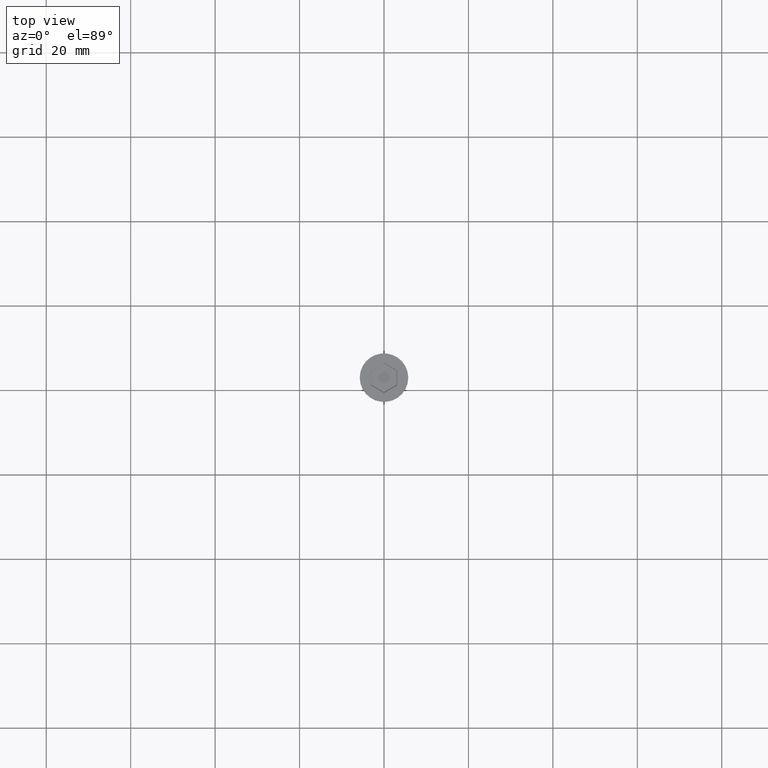
[diagram: clean part render]
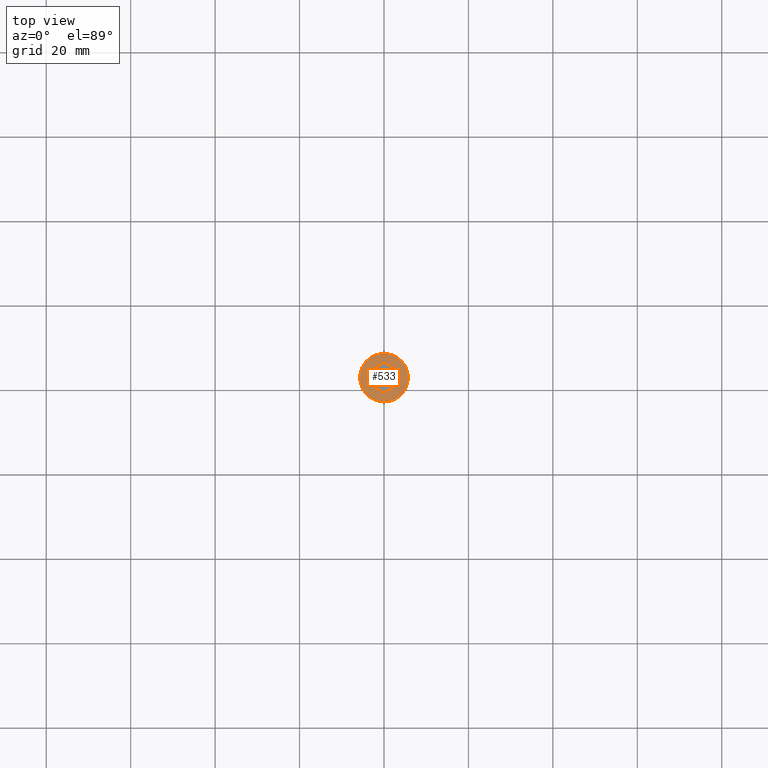
[diagram: same view with one face highlighted and labeled with its STEP entity id]
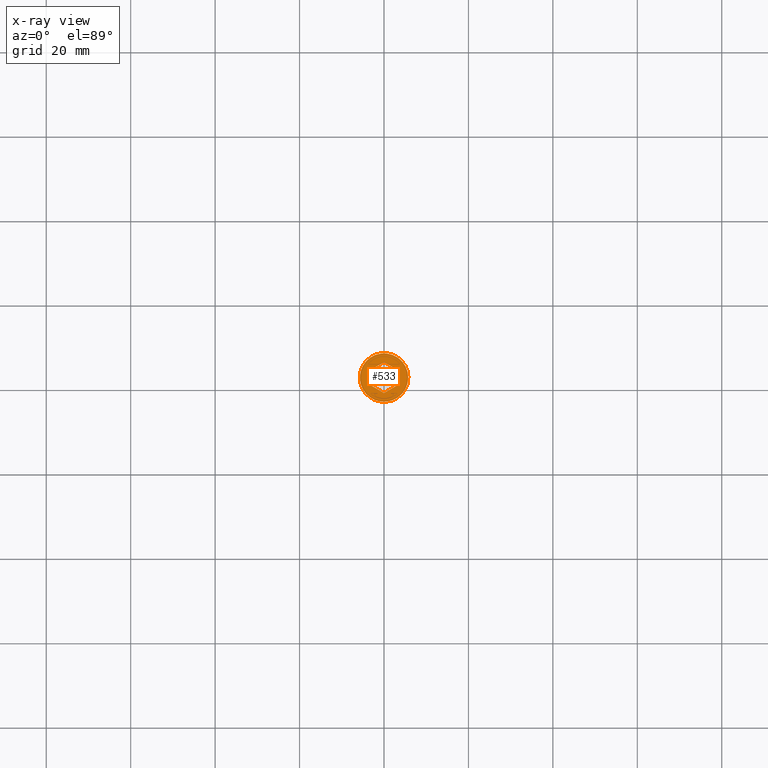
[diagram: x-ray of the same camera — body ghosted, the highlighted face saturated]
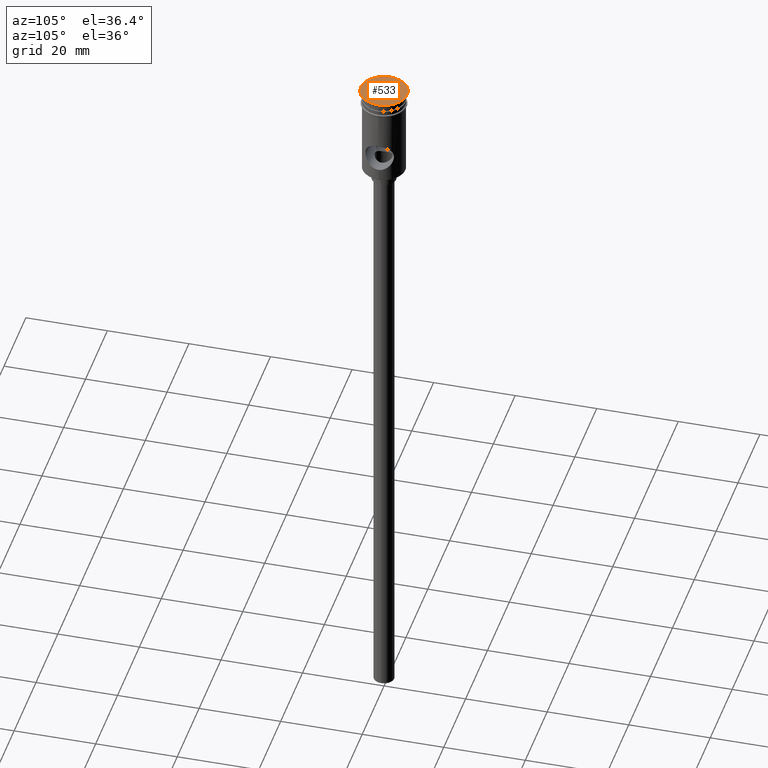
[diagram: same view with one face highlighted and labeled with its STEP entity id]
A machine part, top view. The second image highlights one B-rep face of the part: STEP entity #533.
The next image is the same camera in x-ray: the body ghosted, the highlighted face saturated — about 0% of this face is hidden behind the body in this view.
A second angle (auxiliary view) of the same face is appended — the face is thin or edge-on in the first view.
In plain terms, the highlighted planar face has unit normal (0, -0, 1).
Its self-contained STEP definition (entity closure, byte-faithful):
#6 = ORIENTED_EDGE ( 'NONE', *, *, #234, .T. ) ;
#8 = FACE_BOUND ( 'NONE', #326, .T. ) ;
#14 = PLANE ( 'NONE',  #806 ) ;
#83 = CARTESIAN_POINT ( 'NONE',  ( -3.149999999999978595, 1.818653347947308374, 0.000000000000000000 ) ) ;
#114 = DIRECTION ( 'NONE',  ( 0.8660254037844385966, 0.5000000000000001110, 0.000000000000000000 ) ) ;
#131 = FACE_OUTER_BOUND ( 'NONE', #1055, .T. ) ;
#132 = CARTESIAN_POINT ( 'NONE',  ( -3.049999999999989608, -1.876388374866265085, 0.000000000000000000 ) ) ;
#138 = DIRECTION ( 'NONE',  ( 0.000000000000000000, -0.000000000000000000, 1.000000000000000000 ) ) ;
#160 = VERTEX_POINT ( 'NONE', #854 ) ;
#172 = DIRECTION ( 'NONE',  ( 1.000000000000000000, 0.000000000000000000, 0.000000000000000000 ) ) ;
#207 = CARTESIAN_POINT ( 'NONE',  ( 0.09999999999998870903, -3.579571668975661591, 0.000000000000000000 ) ) ;
#234 = EDGE_CURVE ( 'NONE', #403, #417, #556, .T. ) ;
#239 = VECTOR ( 'NONE', #652, 1000.000000000000000 ) ;
#261 = CIRCLE ( 'NONE', #500, 5.750000000000000000 ) ;
#289 = CARTESIAN_POINT ( 'NONE',  ( 3.149999999999979039, 1.818653347947308596, 0.000000000000000000 ) ) ;
#326 = EDGE_LOOP ( 'NONE', ( #6, #1037, #1305, #1390, #1328, #1439 ) ) ;
#354 = VECTOR ( 'NONE', #1103, 1000.000000000000114 ) ;
#358 = CIRCLE ( 'NONE', #737, 5.750000000000000000 ) ;
#375 = LINE ( 'NONE', #826, #962 ) ;
#387 = DIRECTION ( 'NONE',  ( 1.000000000000000000, 0.000000000000000000, 0.000000000000000000 ) ) ;
#403 = VERTEX_POINT ( 'NONE', #926 ) ;
#417 = VERTEX_POINT ( 'NONE', #1278 ) ;
#430 = EDGE_CURVE ( 'NONE', #160, #1226, #261, .T. ) ;
#500 = AXIS2_PLACEMENT_3D ( 'NONE', #1405, #1154, #172 ) ;
#519 = CARTESIAN_POINT ( 'NONE',  ( -3.163467028841980443E-16, 3.637306695894617192, 0.000000000000000000 ) ) ;
#525 = CARTESIAN_POINT ( 'NONE',  ( -3.149999999999978595, 1.703183294109395840, 0.000000000000000000 ) ) ;
#533 = ADVANCED_FACE ( 'NONE', ( #8, #131 ), #14, .T. ) ;
#556 = LINE ( 'NONE', #132, #354 ) ;
#652 = DIRECTION ( 'NONE',  ( 0.8660254037844387076, -0.4999999999999998890, 0.000000000000000000 ) ) ;
#737 = AXIS2_PLACEMENT_3D ( 'NONE', #794, #1232, #1224 ) ;
#749 = LINE ( 'NONE', #207, #867 ) ;
#776 = DIRECTION ( 'NONE',  ( 0.000000000000000000, 1.000000000000000000, 0.000000000000000000 ) ) ;
#794 = CARTESIAN_POINT ( 'NONE',  ( 0.000000000000000000, 0.000000000000000000, 0.000000000000000000 ) ) ;
#801 = CARTESIAN_POINT ( 'NONE',  ( 0.000000000000000000, 0.000000000000000000, 0.000000000000000000 ) ) ;
#806 = AXIS2_PLACEMENT_3D ( 'NONE', #801, #138, #387 ) ;
#826 = CARTESIAN_POINT ( 'NONE',  ( 3.149999999999978151, -1.703183294109396284, 0.000000000000000000 ) ) ;
#836 = EDGE_CURVE ( 'NONE', #1226, #160, #358, .T. ) ;
#854 = CARTESIAN_POINT ( 'NONE',  ( 5.750000000000000000, 0.000000000000000000, 0.000000000000000000 ) ) ;
#861 = ORIENTED_EDGE ( 'NONE', *, *, #836, .T. ) ;
#863 = CARTESIAN_POINT ( 'NONE',  ( 3.049999999999990052, 1.876388374866264863, 0.000000000000000000 ) ) ;
#867 = VECTOR ( 'NONE', #1425, 1000.000000000000000 ) ;
#876 = LINE ( 'NONE', #1235, #1072 ) ;
#914 = CARTESIAN_POINT ( 'NONE',  ( 3.149999999999978151, -1.818653347947309262, 0.000000000000000000 ) ) ;
#919 = VECTOR ( 'NONE', #776, 1000.000000000000000 ) ;
#926 = CARTESIAN_POINT ( 'NONE',  ( -5.257856505504653693E-16, -3.637306695894617636, 0.000000000000000000 ) ) ;
#944 = ORIENTED_EDGE ( 'NONE', *, *, #430, .T. ) ;
#962 = VECTOR ( 'NONE', #1267, 1000.000000000000000 ) ;
#965 = EDGE_CURVE ( 'NONE', #1334, #1283, #375, .T. ) ;
#1027 = EDGE_CURVE ( 'NONE', #1283, #403, #749, .T. ) ;
#1037 = ORIENTED_EDGE ( 'NONE', *, *, #1340, .T. ) ;
#1055 = EDGE_LOOP ( 'NONE', ( #944, #861 ) ) ;
#1062 = LINE ( 'NONE', #525, #919 ) ;
#1072 = VECTOR ( 'NONE', #114, 1000.000000000000114 ) ;
#1073 = LINE ( 'NONE', #863, #239 ) ;
#1103 = DIRECTION ( 'NONE',  ( -0.8660254037844385966, 0.5000000000000001110, 0.000000000000000000 ) ) ;
#1117 = EDGE_CURVE ( 'NONE', #1256, #1334, #1073, .T. ) ;
#1129 = EDGE_CURVE ( 'NONE', #1362, #1256, #876, .T. ) ;
#1154 = DIRECTION ( 'NONE',  ( -0.000000000000000000, -0.000000000000000000, 1.000000000000000000 ) ) ;
#1224 = DIRECTION ( 'NONE',  ( 1.000000000000000000, 0.000000000000000000, 0.000000000000000000 ) ) ;
#1226 = VERTEX_POINT ( 'NONE', #1230 ) ;
#1230 = CARTESIAN_POINT ( 'NONE',  ( -5.750000000000000000, 7.041719095097280880E-16, 0.000000000000000000 ) ) ;
#1232 = DIRECTION ( 'NONE',  ( -0.000000000000000000, -0.000000000000000000, 1.000000000000000000 ) ) ;
#1235 = CARTESIAN_POINT ( 'NONE',  ( -0.09999999999998937517, 3.579571668975661147, 0.000000000000000000 ) ) ;
#1256 = VERTEX_POINT ( 'NONE', #519 ) ;
#1267 = DIRECTION ( 'NONE',  ( -2.546295930062981593E-16, -1.000000000000000000, 0.000000000000000000 ) ) ;
#1278 = CARTESIAN_POINT ( 'NONE',  ( -3.149999999999978595, -1.818653347947308818, 0.000000000000000000 ) ) ;
#1283 = VERTEX_POINT ( 'NONE', #914 ) ;
#1305 = ORIENTED_EDGE ( 'NONE', *, *, #1129, .T. ) ;
#1328 = ORIENTED_EDGE ( 'NONE', *, *, #965, .T. ) ;
#1334 = VERTEX_POINT ( 'NONE', #289 ) ;
#1340 = EDGE_CURVE ( 'NONE', #417, #1362, #1062, .T. ) ;
#1362 = VERTEX_POINT ( 'NONE', #83 ) ;
#1390 = ORIENTED_EDGE ( 'NONE', *, *, #1117, .T. ) ;
#1405 = CARTESIAN_POINT ( 'NONE',  ( 0.000000000000000000, 0.000000000000000000, 0.000000000000000000 ) ) ;
#1425 = DIRECTION ( 'NONE',  ( -0.8660254037844387076, -0.4999999999999998890, 0.000000000000000000 ) ) ;
#1439 = ORIENTED_EDGE ( 'NONE', *, *, #1027, .T. ) ;